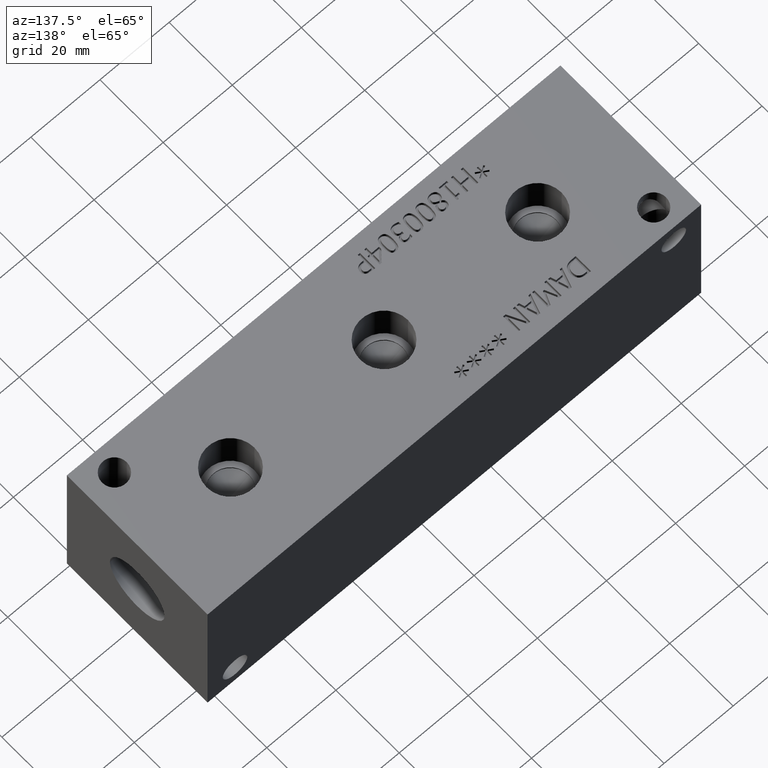
[diagram: clean part render]
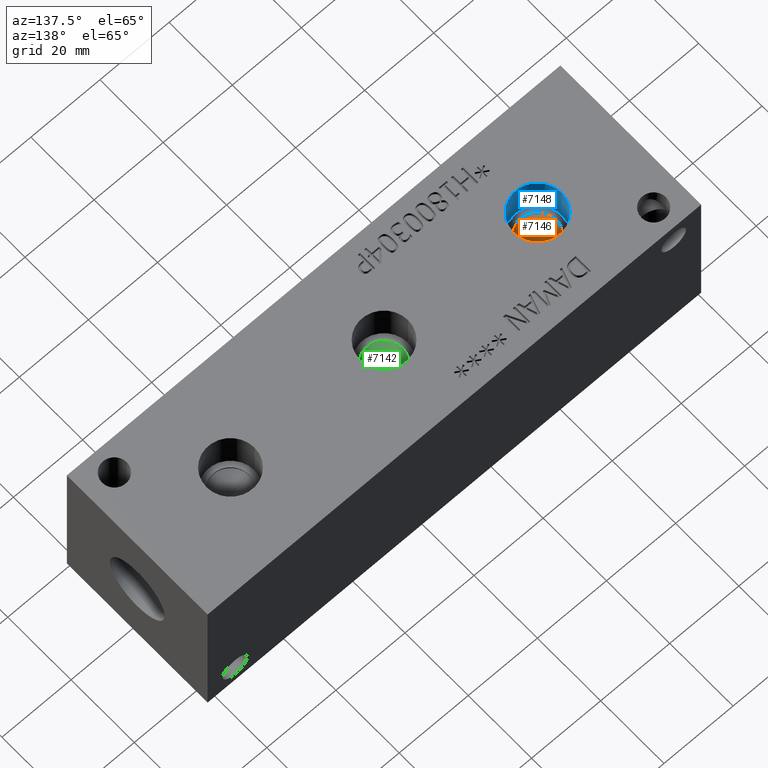
[diagram: same view with three faces highlighted in distinct colors, each labeled with its STEP entity id]
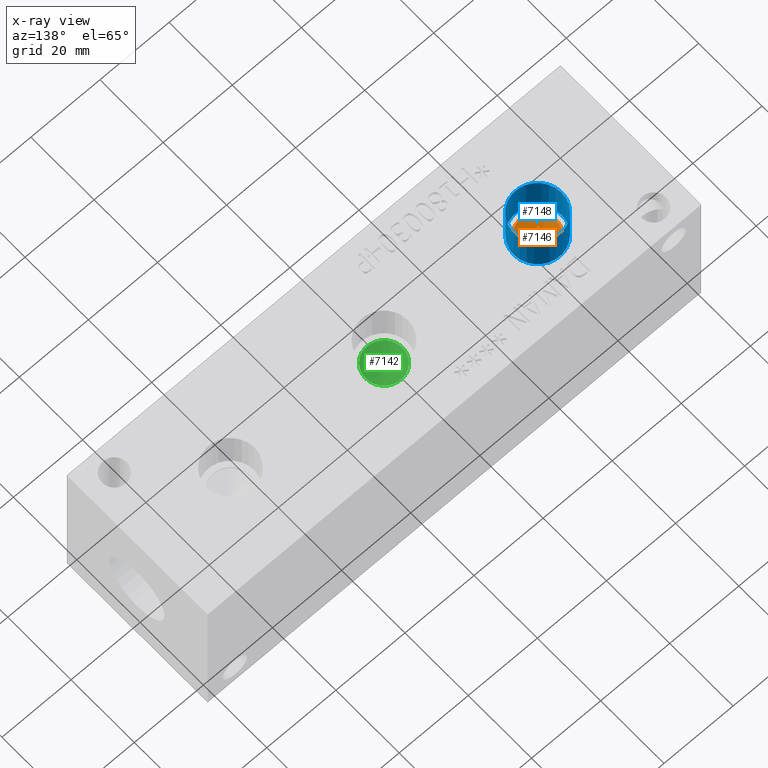
[diagram: x-ray of the same camera — body ghosted, the three highlighted faces saturated]
A machine part, auxiliary view with three faces highlighted in distinct colors.
The next image is the same camera in x-ray (body ghosted, the three faces saturated) — at least one of them is partly hidden behind the body in this view.
Their STEP definitions:

[orange] entity #7146 — the highlighted conical surface has half-angle 60 deg.
#52=CONICAL_SURFACE('',#7494,2.6797,1.0471975511966);
#110=CIRCLE('',#7495,5.3594);
#111=CIRCLE('',#7496,5.3594);
#793=FACE_OUTER_BOUND('',#1194,.T.);
#1194=EDGE_LOOP('',(#6166,#6167,#6168,#6169));
#1927=LINE('',#12062,#2647);
#2647=VECTOR('',#8868,2.6797);
#3305=VERTEX_POINT('',#12058);
#3306=VERTEX_POINT('',#12059);
#3307=VERTEX_POINT('',#12061);
#4273=EDGE_CURVE('',#3305,#3306,#110,.T.);
#4274=EDGE_CURVE('',#3306,#3307,#1927,.T.);
#4275=EDGE_CURVE('',#3306,#3305,#111,.T.);
#6166=ORIENTED_EDGE('',*,*,#4273,.T.);
#6167=ORIENTED_EDGE('',*,*,#4274,.T.);
#6168=ORIENTED_EDGE('',*,*,#4274,.F.);
#6169=ORIENTED_EDGE('',*,*,#4275,.T.);
#7146=ADVANCED_FACE('',(#793),#52,.F.);
#7494=AXIS2_PLACEMENT_3D('',#12057,#8864,#8865);
#7495=AXIS2_PLACEMENT_3D('',#12060,#8866,#8867);
#7496=AXIS2_PLACEMENT_3D('',#12063,#8869,#8870);
#8864=DIRECTION('center_axis',(0.,0.,1.));
#8865=DIRECTION('ref_axis',(1.,0.,0.));
#8866=DIRECTION('center_axis',(0.,0.,1.));
#8867=DIRECTION('ref_axis',(1.,0.,0.));
#8868=DIRECTION('',(0.866025403784439,1.06057523872491E-16,-0.5));
#8869=DIRECTION('center_axis',(0.,0.,1.));
#8870=DIRECTION('ref_axis',(1.,0.,0.));
#12057=CARTESIAN_POINT('Origin',(26.9748,22.225,31.1888444836526));
#12058=CARTESIAN_POINT('',(32.3342,22.225,32.73597));
#12059=CARTESIAN_POINT('',(21.6154,22.225,32.73597));
#12060=CARTESIAN_POINT('Origin',(26.9748,22.225,32.73597));
#12061=CARTESIAN_POINT('',(26.9748,22.225,29.6417189673051));
#12062=CARTESIAN_POINT('',(24.2951,22.225,31.1888444836526));
#12063=CARTESIAN_POINT('Origin',(26.9748,22.225,32.73597));

[blue] entity #7148 — the highlighted cylindrical surface (bore or boss wall) has radius 6.9342 mm, axis along (0, 0, 1).
#40=CYLINDRICAL_SURFACE('',#7501,6.9342);
#56=CIRCLE('',#7311,6.9342);
#57=CIRCLE('',#7312,6.9342);
#112=CIRCLE('',#7498,6.9342);
#113=CIRCLE('',#7499,6.9342);
#795=FACE_OUTER_BOUND('',#1197,.T.);
#1197=EDGE_LOOP('',(#6173,#6174,#6175,#6176,#6177,#6178));
#1928=LINE('',#12072,#2648);
#2648=VECTOR('',#8881,6.9342);
#3042=VERTEX_POINT('',#10206);
#3043=VERTEX_POINT('',#10207);
#3308=VERTEX_POINT('',#12065);
#3309=VERTEX_POINT('',#12066);
#3833=EDGE_CURVE('',#3042,#3043,#56,.T.);
#3834=EDGE_CURVE('',#3043,#3042,#57,.T.);
#4276=EDGE_CURVE('',#3308,#3309,#112,.T.);
#4277=EDGE_CURVE('',#3309,#3308,#113,.T.);
#4279=EDGE_CURVE('',#3043,#3309,#1928,.T.);
#6173=ORIENTED_EDGE('',*,*,#3833,.F.);
#6174=ORIENTED_EDGE('',*,*,#3834,.F.);
#6175=ORIENTED_EDGE('',*,*,#4279,.T.);
#6176=ORIENTED_EDGE('',*,*,#4276,.F.);
#6177=ORIENTED_EDGE('',*,*,#4277,.F.);
#6178=ORIENTED_EDGE('',*,*,#4279,.F.);
#7148=ADVANCED_FACE('',(#795),#40,.F.);
#7311=AXIS2_PLACEMENT_3D('',#10208,#8241,#8242);
#7312=AXIS2_PLACEMENT_3D('',#10209,#8243,#8244);
#7498=AXIS2_PLACEMENT_3D('',#12067,#8873,#8874);
#7499=AXIS2_PLACEMENT_3D('',#12068,#8875,#8876);
#7501=AXIS2_PLACEMENT_3D('',#12071,#8879,#8880);
#8241=DIRECTION('center_axis',(0.,0.,-1.));
#8242=DIRECTION('ref_axis',(1.,0.,0.));
#8243=DIRECTION('center_axis',(0.,0.,-1.));
#8244=DIRECTION('ref_axis',(1.,0.,0.));
#8873=DIRECTION('center_axis',(0.,0.,1.));
#8874=DIRECTION('ref_axis',(1.,0.,0.));
#8875=DIRECTION('center_axis',(0.,0.,1.));
#8876=DIRECTION('ref_axis',(1.,0.,0.));
#8879=DIRECTION('center_axis',(0.,0.,1.));
#8880=DIRECTION('ref_axis',(1.,0.,0.));
#8881=DIRECTION('',(0.,0.,-1.));
#10206=CARTESIAN_POINT('',(33.909,22.225,44.45));
#10207=CARTESIAN_POINT('',(20.0406,22.225,44.45));
#10208=CARTESIAN_POINT('Origin',(26.9748,22.225,44.45));
#10209=CARTESIAN_POINT('Origin',(26.9748,22.225,44.45));
#12065=CARTESIAN_POINT('',(33.909,22.225,33.0454));
#12066=CARTESIAN_POINT('',(20.0406,22.225,33.0454));
#12067=CARTESIAN_POINT('Origin',(26.9748,22.225,33.0454));
#12068=CARTESIAN_POINT('Origin',(26.9748,22.225,33.0454));
#12071=CARTESIAN_POINT('Origin',(26.9748,22.225,38.7477));
#12072=CARTESIAN_POINT('',(20.0406,22.225,38.7477));

[green] entity #7142 — the highlighted conical surface has half-angle 60 deg.
#51=CONICAL_SURFACE('',#7485,2.6797,1.0471975511966);
#105=CIRCLE('',#7486,5.3594);
#106=CIRCLE('',#7487,5.3594);
#789=FACE_OUTER_BOUND('',#1189,.T.);
#1189=EDGE_LOOP('',(#6148,#6149,#6150,#6151));
#1924=LINE('',#12044,#2644);
#2644=VECTOR('',#8847,2.6797);
#3299=VERTEX_POINT('',#12040);
#3300=VERTEX_POINT('',#12041);
#3301=VERTEX_POINT('',#12043);
#4265=EDGE_CURVE('',#3299,#3300,#105,.T.);
#4266=EDGE_CURVE('',#3300,#3301,#1924,.T.);
#4267=EDGE_CURVE('',#3300,#3299,#106,.T.);
#6148=ORIENTED_EDGE('',*,*,#4265,.T.);
#6149=ORIENTED_EDGE('',*,*,#4266,.T.);
#6150=ORIENTED_EDGE('',*,*,#4266,.F.);
#6151=ORIENTED_EDGE('',*,*,#4267,.T.);
#7142=ADVANCED_FACE('',(#789),#51,.F.);
#7485=AXIS2_PLACEMENT_3D('',#12039,#8843,#8844);
#7486=AXIS2_PLACEMENT_3D('',#12042,#8845,#8846);
#7487=AXIS2_PLACEMENT_3D('',#12045,#8848,#8849);
#8843=DIRECTION('center_axis',(0.,0.,1.));
#8844=DIRECTION('ref_axis',(1.,0.,0.));
#8845=DIRECTION('center_axis',(0.,0.,1.));
#8846=DIRECTION('ref_axis',(1.,0.,0.));
#8847=DIRECTION('',(0.866025403784439,1.06057523872491E-16,-0.5));
#8848=DIRECTION('center_axis',(0.,0.,1.));
#8849=DIRECTION('ref_axis',(1.,0.,0.));
#12039=CARTESIAN_POINT('Origin',(71.4248,22.225,31.1888444836526));
#12040=CARTESIAN_POINT('',(76.7842,22.225,32.73597));
#12041=CARTESIAN_POINT('',(66.0654,22.225,32.73597));
#12042=CARTESIAN_POINT('Origin',(71.4248,22.225,32.73597));
#12043=CARTESIAN_POINT('',(71.4248,22.225,29.6417189673051));
#12044=CARTESIAN_POINT('',(68.7451,22.225,31.1888444836526));
#12045=CARTESIAN_POINT('Origin',(71.4248,22.225,32.73597));